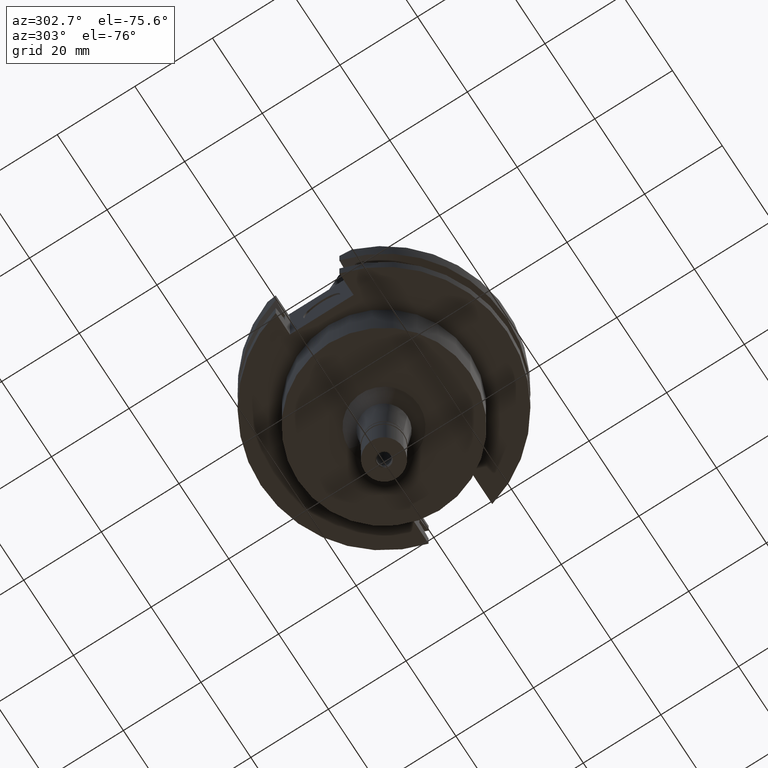
[diagram: clean part render]
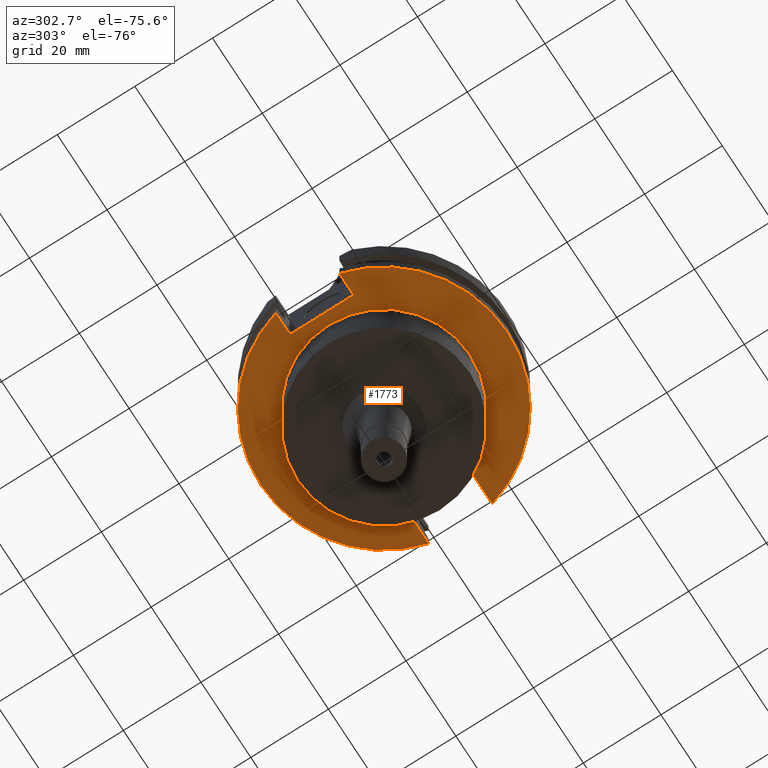
[diagram: same view with one face highlighted and labeled with its STEP entity id]
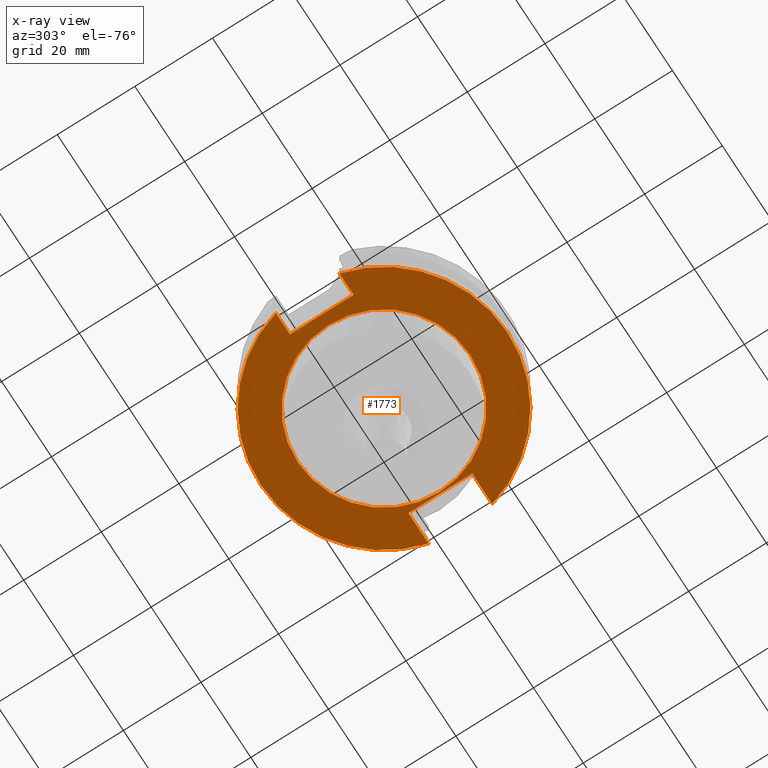
[diagram: x-ray of the same camera — body ghosted, the highlighted face saturated]
A machine part, auxiliary view. The second image highlights one B-rep face of the part: STEP entity #1773.
The next image is the same camera in x-ray: the body ghosted, the highlighted face saturated — about 0% of this face is hidden behind the body in this view.
In plain terms, the highlighted planar face has unit normal (0, 0, -1).
Its self-contained STEP definition (entity closure, byte-faithful):
#40 = VECTOR ( 'NONE', #2956, 1000.000000000000000 ) ;
#59 = EDGE_CURVE ( 'NONE', #2014, #964, #1626, .T. ) ;
#159 = AXIS2_PLACEMENT_3D ( 'NONE', #2036, #3025, #809 ) ;
#170 = AXIS2_PLACEMENT_3D ( 'NONE', #2939, #410, #199 ) ;
#195 = ORIENTED_EDGE ( 'NONE', *, *, #1150, .F. ) ;
#199 = DIRECTION ( 'NONE',  ( 0.0000000000000000000, 1.000000000000000000, 0.0000000000000000000 ) ) ;
#223 = VERTEX_POINT ( 'NONE', #540 ) ;
#244 = ORIENTED_EDGE ( 'NONE', *, *, #2901, .F. ) ;
#294 = VERTEX_POINT ( 'NONE', #2055 ) ;
#303 = ORIENTED_EDGE ( 'NONE', *, *, #1175, .T. ) ;
#313 = CIRCLE ( 'NONE', #170, 31.75000000000000000 ) ;
#352 = CARTESIAN_POINT ( 'NONE',  ( 0.0000000000000000000, 2.138876250880999822E-14, -19.05000000000000071 ) ) ;
#354 = EDGE_CURVE ( 'NONE', #2709, #223, #1545, .T. ) ;
#379 = VECTOR ( 'NONE', #1858, 1000.000000000000000 ) ;
#403 = DIRECTION ( 'NONE',  ( 0.0000000000000000000, 0.0000000000000000000, -1.000000000000000000 ) ) ;
#410 = DIRECTION ( 'NONE',  ( 0.0000000000000000000, 0.0000000000000000000, 1.000000000000000000 ) ) ;
#452 = AXIS2_PLACEMENT_3D ( 'NONE', #1825, #1381, #823 ) ;
#491 = CARTESIAN_POINT ( 'NONE',  ( 22.57000000000000028, 8.189999999999999503, -19.05000000000000071 ) ) ;
#508 = CARTESIAN_POINT ( 'NONE',  ( 22.57000000000000028, -8.189999999999999503, -19.05000000000000071 ) ) ;
#526 = CIRCLE ( 'NONE', #2074, 22.22500000000000142 ) ;
#540 = CARTESIAN_POINT ( 'NONE',  ( 30.67550162588999640, -8.189999999999999503, -19.05000000000000071 ) ) ;
#560 = EDGE_LOOP ( 'NONE', ( #1745, #2058, #3126, #195, #303, #1233, #2761, #3178 ) ) ;
#579 = LINE ( 'NONE', #2365, #379 ) ;
#664 = LINE ( 'NONE', #491, #40 ) ;
#677 = EDGE_CURVE ( 'NONE', #294, #223, #702, .T. ) ;
#702 = LINE ( 'NONE', #508, #1709 ) ;
#716 = CARTESIAN_POINT ( 'NONE',  ( 0.0000000000000000000, 22.22500000000000142, -19.05000000000000071 ) ) ;
#773 = VERTEX_POINT ( 'NONE', #1786 ) ;
#804 = VECTOR ( 'NONE', #1371, 1000.000000000000000 ) ;
#809 = DIRECTION ( 'NONE',  ( 0.0000000000000000000, -1.000000000000000000, 0.0000000000000000000 ) ) ;
#823 = DIRECTION ( 'NONE',  ( 0.0000000000000000000, -1.000000000000000000, 0.0000000000000000000 ) ) ;
#860 = CARTESIAN_POINT ( 'NONE',  ( 0.0000000000000000000, 2.138876250880999822E-14, -19.05000000000000071 ) ) ;
#910 = VERTEX_POINT ( 'NONE', #1053 ) ;
#921 = VERTEX_POINT ( 'NONE', #1303 ) ;
#954 = ORIENTED_EDGE ( 'NONE', *, *, #1022, .F. ) ;
#964 = VERTEX_POINT ( 'NONE', #3079 ) ;
#1022 = EDGE_CURVE ( 'NONE', #1837, #1476, #2502, .T. ) ;
#1053 = CARTESIAN_POINT ( 'NONE',  ( -24.98000000000000043, 8.189999999999999503, -19.05000000000000071 ) ) ;
#1087 = AXIS2_PLACEMENT_3D ( 'NONE', #860, #1328, #1164 ) ;
#1092 = FACE_BOUND ( 'NONE', #1126, .T. ) ;
#1096 = CARTESIAN_POINT ( 'NONE',  ( -24.98000000000000043, 8.189999999999999503, -19.05000000000000071 ) ) ;
#1126 = EDGE_LOOP ( 'NONE', ( #244, #954 ) ) ;
#1150 = EDGE_CURVE ( 'NONE', #910, #921, #579, .T. ) ;
#1164 = DIRECTION ( 'NONE',  ( 0.0000000000000000000, -1.000000000000000000, 0.0000000000000000000 ) ) ;
#1175 = EDGE_CURVE ( 'NONE', #910, #773, #2134, .T. ) ;
#1203 = DIRECTION ( 'NONE',  ( 1.000000000000000000, 0.0000000000000000000, 0.0000000000000000000 ) ) ;
#1218 = EDGE_CURVE ( 'NONE', #921, #2709, #2625, .T. ) ;
#1233 = ORIENTED_EDGE ( 'NONE', *, *, #2011, .F. ) ;
#1303 = CARTESIAN_POINT ( 'NONE',  ( -24.98000000000000043, -8.189999999999999503, -19.05000000000000071 ) ) ;
#1328 = DIRECTION ( 'NONE',  ( 0.0000000000000000000, 0.0000000000000000000, -1.000000000000000000 ) ) ;
#1338 = EDGE_CURVE ( 'NONE', #2014, #294, #664, .T. ) ;
#1371 = DIRECTION ( 'NONE',  ( -1.000000000000000000, 0.0000000000000000000, 0.0000000000000000000 ) ) ;
#1381 = DIRECTION ( 'NONE',  ( 0.0000000000000000000, 0.0000000000000000000, -1.000000000000000000 ) ) ;
#1408 = DIRECTION ( 'NONE',  ( 0.0000000000000000000, 1.000000000000000000, 0.0000000000000000000 ) ) ;
#1476 = VERTEX_POINT ( 'NONE', #716 ) ;
#1545 = CIRCLE ( 'NONE', #159, 31.75000000000000000 ) ;
#1584 = CARTESIAN_POINT ( 'NONE',  ( -24.98000000000000043, -8.189999999999999503, -19.05000000000000071 ) ) ;
#1594 = CARTESIAN_POINT ( 'NONE',  ( 0.0000000000000000000, -22.22500000000000142, -19.05000000000000071 ) ) ;
#1626 = LINE ( 'NONE', #2126, #1950 ) ;
#1709 = VECTOR ( 'NONE', #1203, 1000.000000000000000 ) ;
#1745 = ORIENTED_EDGE ( 'NONE', *, *, #677, .T. ) ;
#1773 = ADVANCED_FACE ( 'NONE', ( #2345, #1092 ), #2360, .T. ) ;
#1786 = CARTESIAN_POINT ( 'NONE',  ( -30.67550162588999640, 8.189999999999999503, -19.05000000000000071 ) ) ;
#1825 = CARTESIAN_POINT ( 'NONE',  ( 0.0000000000000000000, 0.0000000000000000000, -19.05000000000000071 ) ) ;
#1837 = VERTEX_POINT ( 'NONE', #1594 ) ;
#1858 = DIRECTION ( 'NONE',  ( 0.0000000000000000000, -1.000000000000000000, 0.0000000000000000000 ) ) ;
#1950 = VECTOR ( 'NONE', #3127, 1000.000000000000000 ) ;
#1959 = CARTESIAN_POINT ( 'NONE',  ( 22.57000000000000028, 8.189999999999999503, -19.05000000000000071 ) ) ;
#2011 = EDGE_CURVE ( 'NONE', #964, #773, #313, .T. ) ;
#2014 = VERTEX_POINT ( 'NONE', #1959 ) ;
#2036 = CARTESIAN_POINT ( 'NONE',  ( 0.0000000000000000000, 2.138876250880999822E-14, -19.05000000000000071 ) ) ;
#2055 = CARTESIAN_POINT ( 'NONE',  ( 22.57000000000000028, -8.189999999999999503, -19.05000000000000071 ) ) ;
#2058 = ORIENTED_EDGE ( 'NONE', *, *, #354, .F. ) ;
#2074 = AXIS2_PLACEMENT_3D ( 'NONE', #352, #403, #1408 ) ;
#2126 = CARTESIAN_POINT ( 'NONE',  ( 22.57000000000000028, 8.189999999999999503, -19.05000000000000071 ) ) ;
#2134 = LINE ( 'NONE', #1096, #804 ) ;
#2345 = FACE_OUTER_BOUND ( 'NONE', #560, .T. ) ;
#2360 = PLANE ( 'NONE',  #452 ) ;
#2365 = CARTESIAN_POINT ( 'NONE',  ( -24.98000000000000043, 8.189999999999999503, -19.05000000000000071 ) ) ;
#2502 = CIRCLE ( 'NONE', #1087, 22.22500000000000142 ) ;
#2561 = DIRECTION ( 'NONE',  ( -1.000000000000000000, 0.0000000000000000000, 0.0000000000000000000 ) ) ;
#2625 = LINE ( 'NONE', #1584, #2713 ) ;
#2709 = VERTEX_POINT ( 'NONE', #2770 ) ;
#2713 = VECTOR ( 'NONE', #2561, 1000.000000000000000 ) ;
#2761 = ORIENTED_EDGE ( 'NONE', *, *, #59, .F. ) ;
#2770 = CARTESIAN_POINT ( 'NONE',  ( -30.67550162588999640, -8.189999999999999503, -19.05000000000000071 ) ) ;
#2901 = EDGE_CURVE ( 'NONE', #1476, #1837, #526, .T. ) ;
#2939 = CARTESIAN_POINT ( 'NONE',  ( 0.0000000000000000000, 2.138876250880999822E-14, -19.05000000000000071 ) ) ;
#2956 = DIRECTION ( 'NONE',  ( 0.0000000000000000000, -1.000000000000000000, 0.0000000000000000000 ) ) ;
#3025 = DIRECTION ( 'NONE',  ( 0.0000000000000000000, 0.0000000000000000000, 1.000000000000000000 ) ) ;
#3079 = CARTESIAN_POINT ( 'NONE',  ( 30.67550162588999640, 8.189999999999999503, -19.05000000000000071 ) ) ;
#3126 = ORIENTED_EDGE ( 'NONE', *, *, #1218, .F. ) ;
#3127 = DIRECTION ( 'NONE',  ( 1.000000000000000000, 0.0000000000000000000, 0.0000000000000000000 ) ) ;
#3178 = ORIENTED_EDGE ( 'NONE', *, *, #1338, .T. ) ;